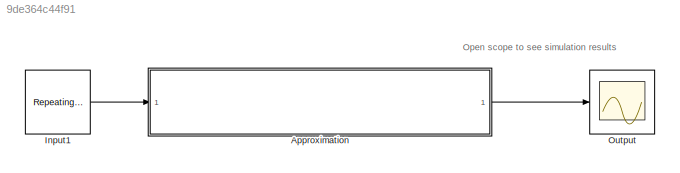
MODEL slx_9de364c44f91
KIND model
CONFIG AbsTol = auto
CONFIG EnableMultiTasking = off
CONFIG FixedStep = 1
CONFIG MaxStep = auto
CONFIG MinStep = auto
CONFIG RelTol = 1e-3
CONFIG SampleTimeConstraint = Unconstrained
CONFIG Solver = FixedStepAuto
CONFIG SolverName = FixedStepAuto
CONFIG StartTime = 0.0
CONFIG StopTime = size(InputValues_20210824T100641914,1) - 1
WORKSPACE source: mxarray member
WORKSPACE InputValues_20210824T100641914 = [-5 -4.9375 -4.875 -4.8125 -4.75 -4.6875 -4.625 -4.5625 -4.5 -4.4375 -4.375 -4.3125 ... (161 elements, 161x1)]
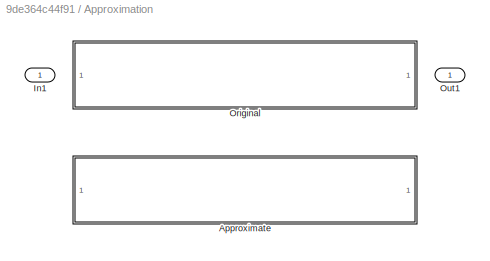
BLOCK [SubSystem] Approximation
  CopyFcn = FunctionApproximation.internal.approximationblock.callback.updateTag('3112e06394ab71adacf7bb189cb322dbc695f0e4');
  Description = This block was created using function approximation.
  MaskHideContents = on
  OpenFcn = FunctionApproximation.internal.approximationblock.callback.openMask('3112e06394ab71adacf7bb189cb322dbc695f0e4');
  Ports = [1, 1]
  RequestExecContextInheritance = off
  Variant = on
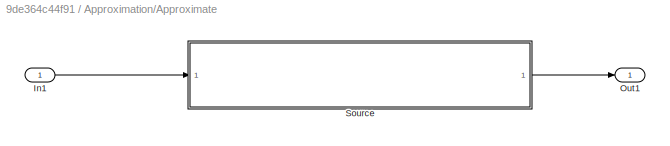
BLOCK [SubSystem] Approximation/Approximate
  Ports = [1, 1]
  RequestExecContextInheritance = off
  Tag = Approximate
  VariantControl = FunctionApproximation.internal.approximationblock.callback.isCurrent('3112e06394ab71adacf7bb189cb322dbc695f0e4','Approximate')
BLOCK [Inport] Approximation/Approximate/In1
BLOCK [Outport] Approximation/Approximate/Out1
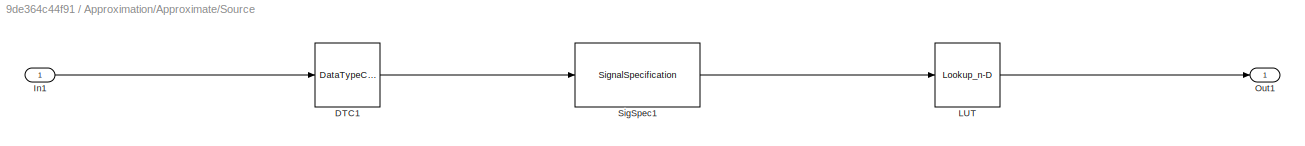
BLOCK [SubSystem] Approximation/Approximate/Source
  Description = This block was created using function approximation.
  Ports = [1, 1]
  RequestExecContextInheritance = off
BLOCK [DataTypeConversion] Approximation/Approximate/Source/DTC1
  RndMeth = Nearest
  SaturateOnIntegerOverflow = off
BLOCK [Inport] Approximation/Approximate/Source/In1
BLOCK [Lookup_n-D] Approximation/Approximate/Source/LUT
  BreakpointsForDimension1DataTypeStr = numerictype(1,8,4)
  BreakpointsForDimension1FirstPoint = -5
  BreakpointsForDimension1Spacing = 0.0625
  BreakpointsForDimension3 = [5, 7]
  BreakpointsSpecification = Even spacing
  ExtrapMethod = Clip
  IndexSearchMethod = Evenly spaced points
  InputSameDT = off
  InternalRulePriority = Speed
  InterpMethod = Flat
  LookupTableObject = FunctionApproximation_LUTObject_20210824T100641909
  NumberOfTableDimensions = 1
  OutDataTypeStr = numerictype(1,8,7)
  Ports = [1, 1]
  RndMeth = Simplest
  SaturateOnIntegerOverflow = on
  Table = [-1 -1 -1 -1 -1 -1 -1 -1 -1 -1 -1 -1 -1 -1 -1 -1 -1 -1 -1 -1 -1 -1 -1 -1 -1 -1 -1 -1 -1 -1 -1 -0.9921875 -0.9921875 -0.9921875 -0.9921875 -0.9921875 -0.9921875 -0.9921875 -0.9921875 -0.984375 -0.984375 -0.984375 -0.984375 -0.984375 -0.9765625 -0.9765625 -0.96875 -0.96875 -0.9609375 -0.9609375 -0.953125 -0.9453125 -0.9375 -0.9375 -0.921875 -0.9140625 -0.90625 -0.890625 -0.8828125 -0.8671875 -0.8515...<+935ch>
  TableDataTypeStr = numerictype(1,8,7)
  UseLastTableValue = on
BLOCK [Outport] Approximation/Approximate/Source/Out1
BLOCK [SignalSpecification] Approximation/Approximate/Source/SigSpec1
  OutDataTypeStr = numerictype(1,8,4)
  OutMax = 5
  OutMin = -5
BLOCK [Inport] Approximation/In1
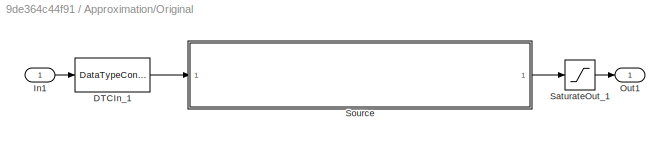
BLOCK [SubSystem] Approximation/Original
  Ports = [1, 1]
  RequestExecContextInheritance = off
  Tag = Original
  VariantControl = FunctionApproximation.internal.approximationblock.callback.isCurrent('3112e06394ab71adacf7bb189cb322dbc695f0e4','Original')
BLOCK [DataTypeConversion] Approximation/Original/DTCIn_1
  OutDataTypeStr = double
  RndMeth = Nearest
  SaturateOnIntegerOverflow = off
BLOCK [Inport] Approximation/Original/In1
BLOCK [Outport] Approximation/Original/Out1
BLOCK [Saturate] Approximation/Original/SaturateOut_1
  LowerLimit = -1
  UpperLimit = 0.9921875
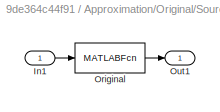
BLOCK [SubSystem] Approximation/Original/Source
  Ports = [1, 1]
  RequestExecContextInheritance = off
BLOCK [Inport] Approximation/Original/Source/In1
BLOCK [MATLABFcn] Approximation/Original/Source/Original
  MATLABFcn = tanh(u(1))
  Ports = [1, 1]
BLOCK [Outport] Approximation/Original/Source/Out1
BLOCK [Outport] Approximation/Out1
BLOCK [Reference] Input1  REF=simulink/Sources/Repeating
Sequence
Stair
  Ports = [0, 1]
  SourceBlock = simulink/Sources/Repeating\nSequence\nStair
  SourceProductBaseCode = SL
  SourceType = Repeating Sequence Stair
BLOCK [Scope] Output
  Floating = off
  NumInputPorts = 1
  Ports = [1]
  ScopeSpecificationString = Simulink.scopes.TimeScopeBlockCfg('CurrentConfiguration', extmgr.ConfigurationSet(extmgr.Configuration('Core','General UI',true),extmgr.Configuration('Core','Source UI',true),extmgr.Configuration('Sources','WiredSimulink',true),extmgr.Configuration('Visuals','Time Domain',true),extmgr.Configuration('Tools','Plot Navigation',true),extmgr.Configuration('Tools','Measurements',true)),'Version','2020a'...<+1ch>
ANNOTATION (root): Open scope to see simulation results
LINE Approximation/Approximate/In1:1 -> Approximation/Approximate/Source:1
LINE Approximation/Approximate/Source/DTC1:1 -> Approximation/Approximate/Source/SigSpec1:1
LINE Approximation/Approximate/Source/In1:1 -> Approximation/Approximate/Source/DTC1:1
LINE Approximation/Approximate/Source/LUT:1 -> Approximation/Approximate/Source/Out1:1
LINE Approximation/Approximate/Source/SigSpec1:1 -> Approximation/Approximate/Source/LUT:1
LINE Approximation/Approximate/Source:1 -> Approximation/Approximate/Out1:1
LINE Approximation/Original/DTCIn_1:1 -> Approximation/Original/Source:1
LINE Approximation/Original/In1:1 -> Approximation/Original/DTCIn_1:1
LINE Approximation/Original/SaturateOut_1:1 -> Approximation/Original/Out1:1
LINE Approximation/Original/Source/In1:1 -> Approximation/Original/Source/Original:1
LINE Approximation/Original/Source/Original:1 -> Approximation/Original/Source/Out1:1
LINE Approximation/Original/Source:1 -> Approximation/Original/SaturateOut_1:1
LINE Approximation:1 -> Output:1
LINE Input1:1 -> Approximation:1
